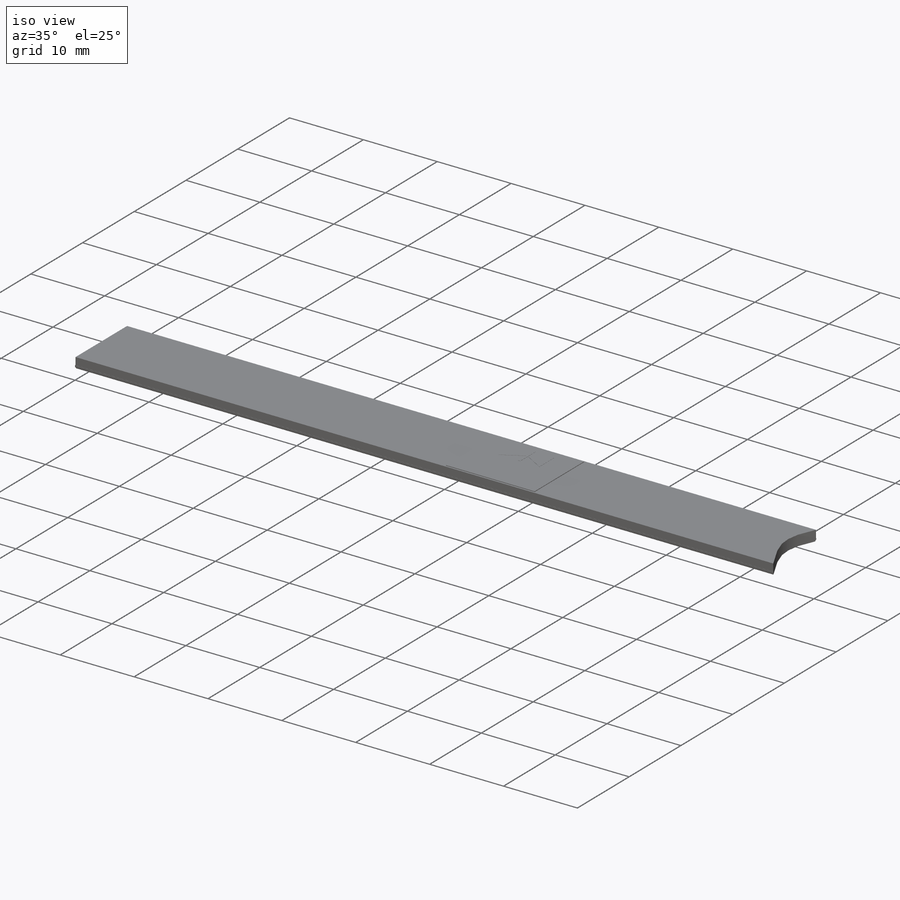
[diagram: iso view]
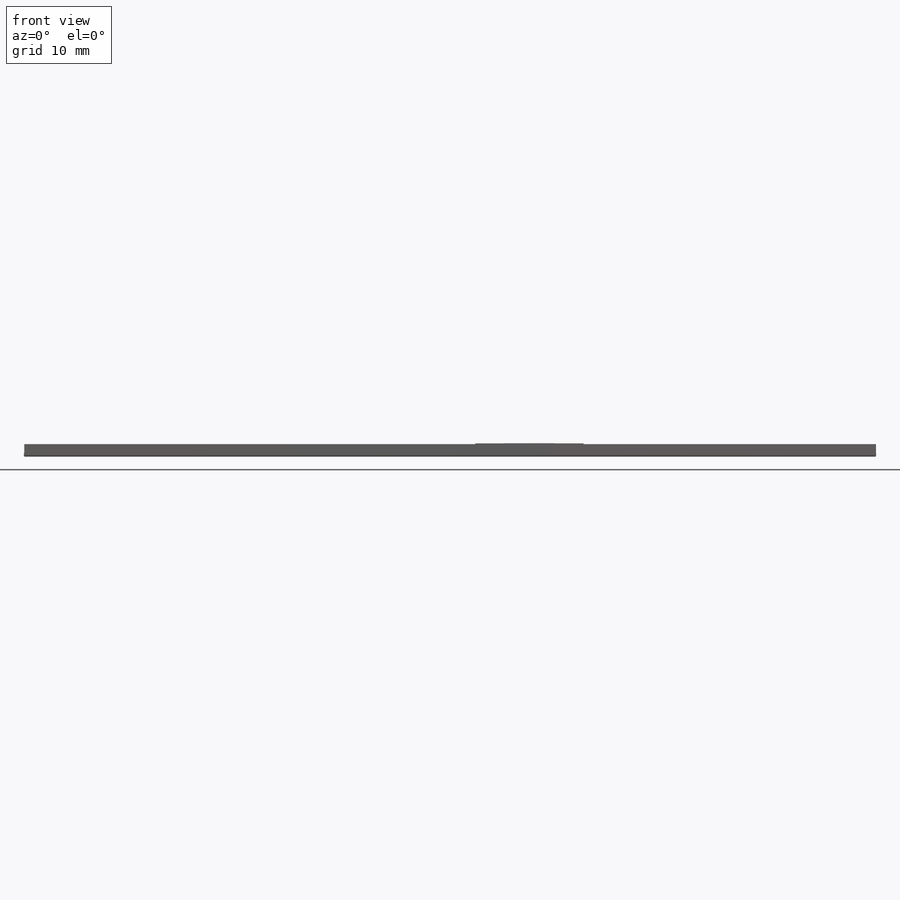
[diagram: front view]
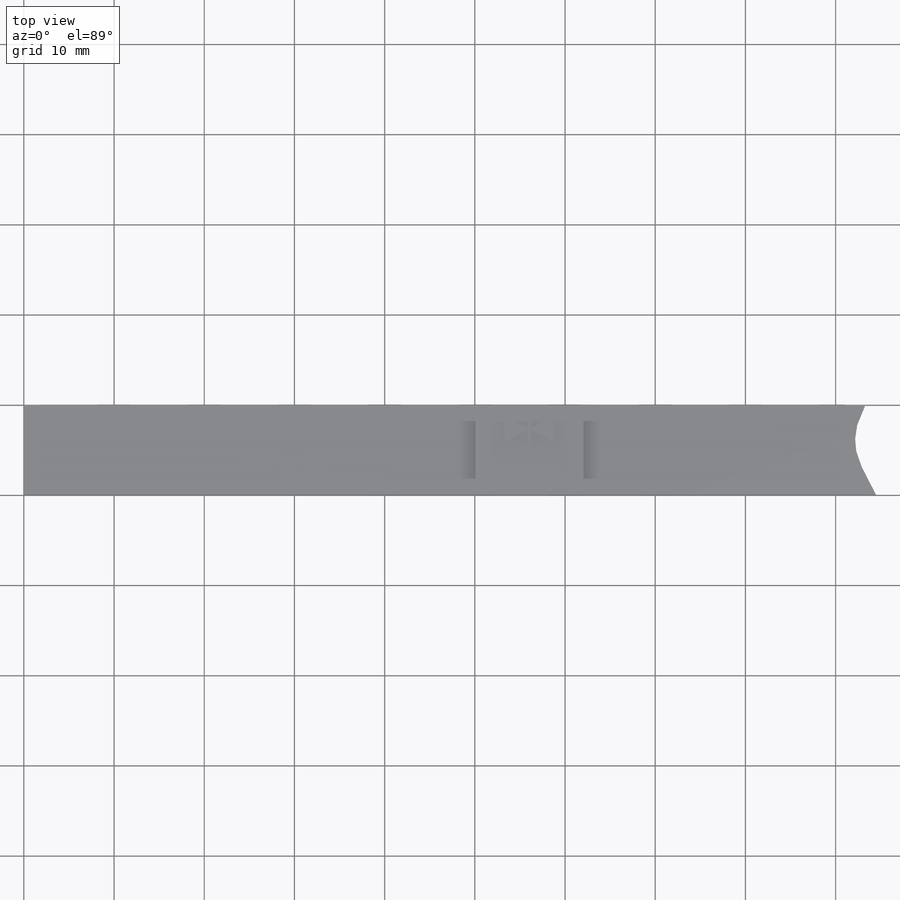
[diagram: top view]
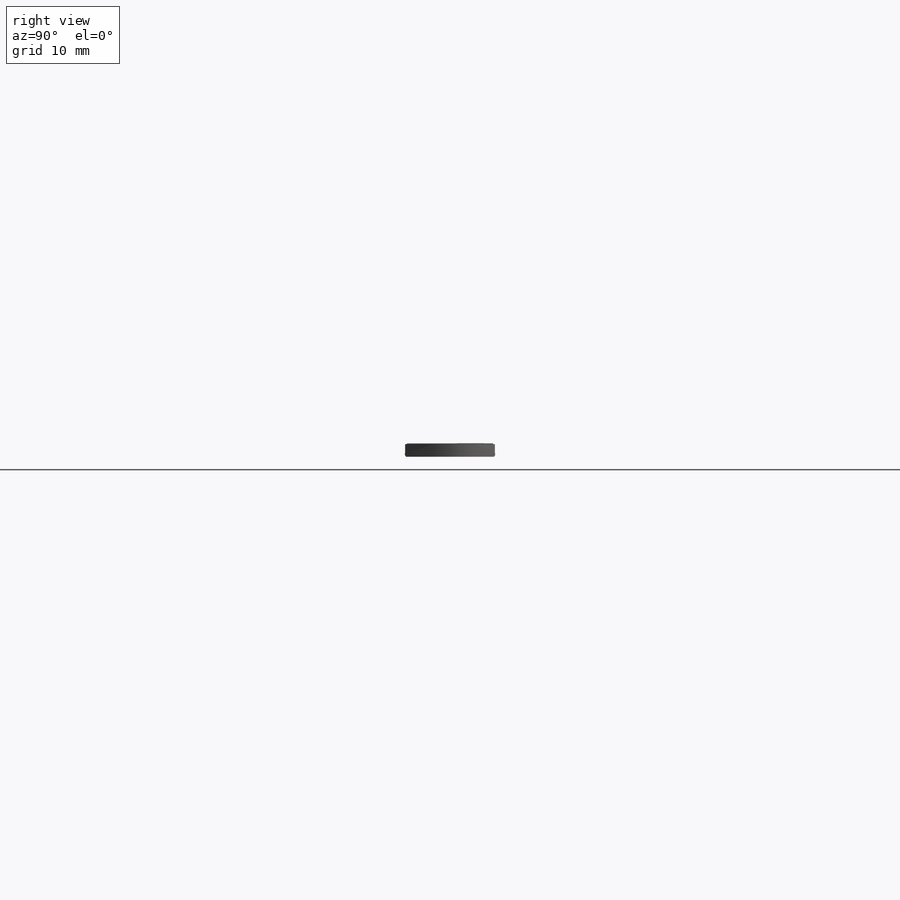
[diagram: right view]
SOLIDWORKS PART (.sldprt)
format: sldprt  version: not decoded by parser v0  size: 247,296 bytes
history: native  units: mm
features: sketch x5, extrude x3, cut_extrude x2, material x1 (+15 scaffold rows collapsed)
feature tree (26):
  scaffold x15  (default folders/planes/origin — collapsed)
  material  "Material <not specified>"
  sketch  "Sketch1"  dims[c1.D6=0.1mm c1.D1=0.3mm c1.D2=10.0mm c1.D3=0.03mm c1.D4=9.95mm c2.D1=9.96mm c2.D2=0.02mm c2.D3=10.0mm c2.D4=0.3mm c2.D5=1.3mm c2.D7=0.1mm c2.D8=0.1mm c2.D9=0.1mm]
  extrude  "Extrude1"  Depth=100mm
  sketch  "Sketch2"
  cut_extrude  "Extrude2"  Depth=0.05mm
  sketch  "Sketch3"
  cut_extrude  "Extrude3"  Depth=2mm
  sketch  "Sketch4"  dims[D1=0.2mm D2=0.2mm D3=12.0mm D4=50.0mm]
  extrude  "Extrude4"  Depth=0.08mm
  sketch  "Sketch5"  dims[D1=6.0mm D2=1.0mm D3=3.0mm D4=1.88mm D5=3.0mm D6=1.5mm D7=0.3mm]
  extrude  "Extrude5"  Depth=0.02mm
decode coverage: 8 of 10 modeling features carry decoded parameters
note: suppression state not decoded; provenance and decode notes live in map.json
